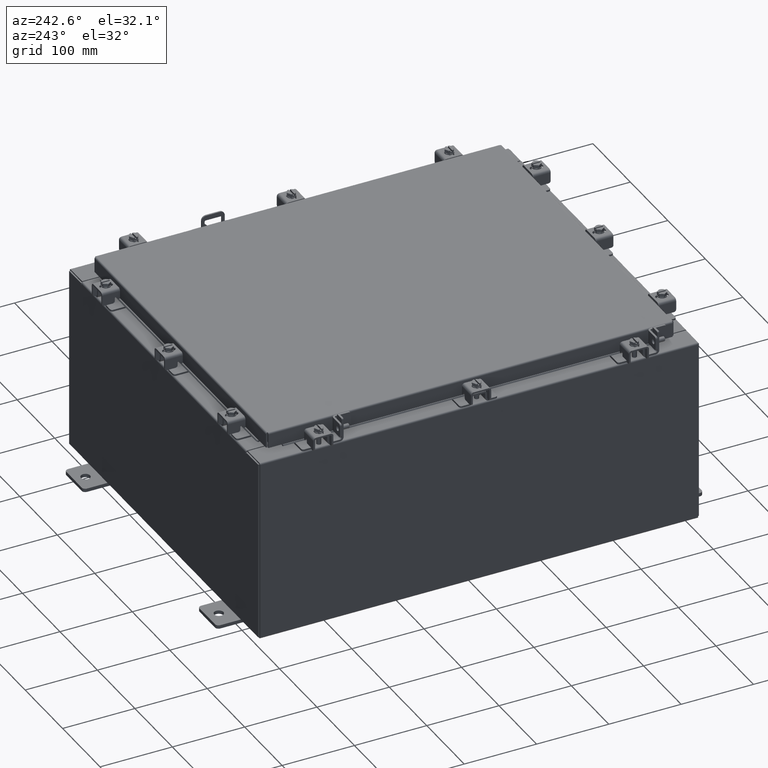
[diagram: clean part render]
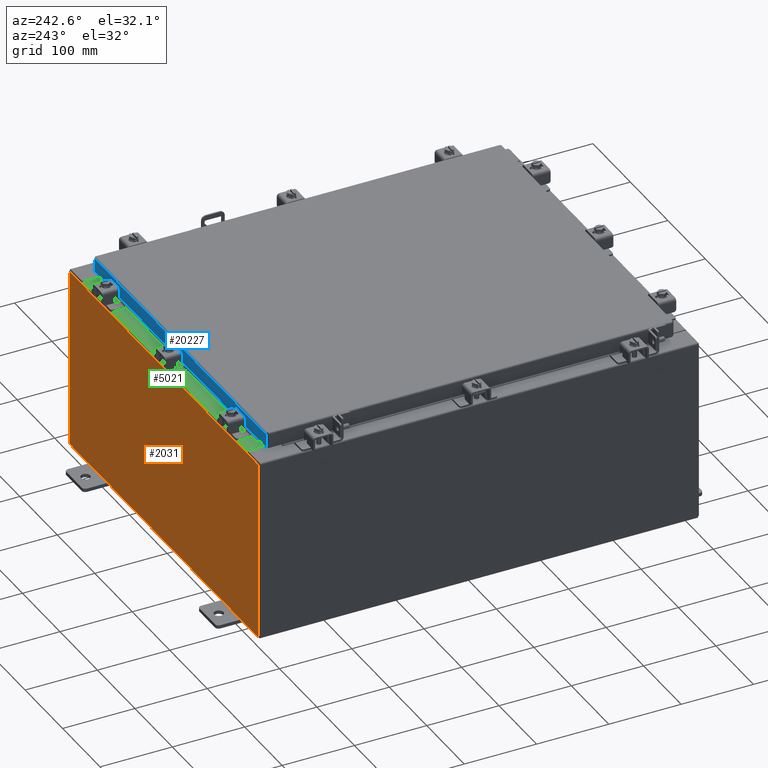
[diagram: same view with three faces highlighted in distinct colors, each labeled with its STEP entity id]
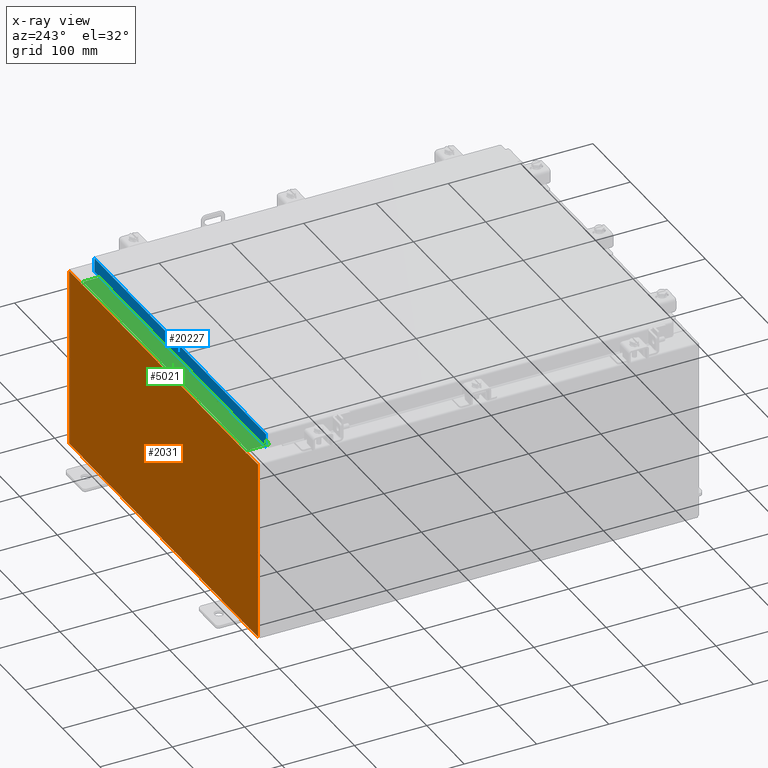
[diagram: x-ray of the same camera — body ghosted, the three highlighted faces saturated]
A machine part, auxiliary view with three faces highlighted in distinct colors.
The next image is the same camera in x-ray (body ghosted, the three faces saturated) — at least one of them is partly hidden behind the body in this view.
Their STEP definitions:

[orange] entity #2031 — the highlighted planar face has unit normal (0, -1, 0).
#195 = DIRECTION ( 'NONE',  ( 0.0000000000000000000, 0.0000000000000000000, -1.000000000000000000 ) ) ;
#255 = VERTEX_POINT ( 'NONE', #21819 ) ;
#337 = CARTESIAN_POINT ( 'NONE',  ( -8.637200000000000000, -7.171100983368691200E-016, 4.912300000000000100 ) ) ;
#652 = CIRCLE ( 'NONE', #16211, 0.01867500000000003900 ) ;
#672 = LINE ( 'NONE', #8840, #14103 ) ;
#833 = AXIS2_PLACEMENT_3D ( 'NONE', #1158, #1405, #4768 ) ;
#855 = VECTOR ( 'NONE', #4995, 39.37007874015748100 ) ;
#929 = VECTOR ( 'NONE', #21810, 39.37007874015748100 ) ;
#1115 = DIRECTION ( 'NONE',  ( 1.000000000000000000, 0.0000000000000000000, 0.0000000000000000000 ) ) ;
#1158 = CARTESIAN_POINT ( 'NONE',  ( 0.0000000000000000000, 0.0000000000000000000, 0.0000000000000000000 ) ) ;
#1405 = DIRECTION ( 'NONE',  ( 0.0000000000000000000, -1.000000000000000000, 0.0000000000000000000 ) ) ;
#1903 = CARTESIAN_POINT ( 'NONE',  ( -9.925300000000000000, 0.0000000000000000000, 4.925300000000000000 ) ) ;
#2031 = ADVANCED_FACE ( 'NONE', ( #2200 ), #18357, .F. ) ;
#2142 = ORIENTED_EDGE ( 'NONE', *, *, #19195, .F. ) ;
#2200 = FACE_OUTER_BOUND ( 'NONE', #17968, .T. ) ;
#2454 = CARTESIAN_POINT ( 'NONE',  ( -9.925300000000000000, 0.0000000000000000000, -4.925300000000000000 ) ) ;
#2979 = AXIS2_PLACEMENT_3D ( 'NONE', #15966, #5539, #17718 ) ;
#3087 = CIRCLE ( 'NONE', #2979, 0.01867500000000003900 ) ;
#3336 = VERTEX_POINT ( 'NONE', #10204 ) ;
#3346 = VECTOR ( 'NONE', #195, 39.37007874015748100 ) ;
#4684 = ORIENTED_EDGE ( 'NONE', *, *, #21936, .F. ) ;
#4727 = CARTESIAN_POINT ( 'NONE',  ( 8.674550000000001800, 0.0000000000000000000, 4.925300000000000000 ) ) ;
#4768 = DIRECTION ( 'NONE',  ( 0.0000000000000000000, -0.0000000000000000000, -1.000000000000000000 ) ) ;
#4830 = CARTESIAN_POINT ( 'NONE',  ( 8.674550000000000000, 0.0000000000000000000, 4.874950000000000100 ) ) ;
#4995 = DIRECTION ( 'NONE',  ( 0.0000000000000000000, 0.0000000000000000000, 1.000000000000000000 ) ) ;
#5331 = DIRECTION ( 'NONE',  ( -0.0000000000000000000, 1.000000000000000000, -0.0000000000000000000 ) ) ;
#5354 = DIRECTION ( 'NONE',  ( 1.000000000000000000, 0.0000000000000000000, 0.0000000000000000000 ) ) ;
#5539 = DIRECTION ( 'NONE',  ( -0.0000000000000000000, 1.000000000000000000, -0.0000000000000000000 ) ) ;
#5606 = ORIENTED_EDGE ( 'NONE', *, *, #20679, .T. ) ;
#5780 = VERTEX_POINT ( 'NONE', #11383 ) ;
#5956 = VERTEX_POINT ( 'NONE', #4830 ) ;
#6228 = CARTESIAN_POINT ( 'NONE',  ( -8.637199999999996400, -0.0000000000000000000, 0.0000000000000000000 ) ) ;
#6545 = CARTESIAN_POINT ( 'NONE',  ( -8.674549999999996400, 0.0000000000000000000, 4.925300000000000000 ) ) ;
#6724 = ORIENTED_EDGE ( 'NONE', *, *, #20596, .F. ) ;
#7342 = ORIENTED_EDGE ( 'NONE', *, *, #12234, .T. ) ;
#7443 = CARTESIAN_POINT ( 'NONE',  ( 8.637200000000000000, 0.0000000000000000000, 4.874950000000000100 ) ) ;
#7567 = VERTEX_POINT ( 'NONE', #12617 ) ;
#7716 = CARTESIAN_POINT ( 'NONE',  ( -9.925300000000000000, 0.0000000000000000000, -4.925300000000000000 ) ) ;
#7892 = DIRECTION ( 'NONE',  ( -6.510859170600007400E-014, 0.0000000000000000000, -1.000000000000000000 ) ) ;
#8472 = ORIENTED_EDGE ( 'NONE', *, *, #19502, .F. ) ;
#8498 = VECTOR ( 'NONE', #1115, 39.37007874015748100 ) ;
#8840 = CARTESIAN_POINT ( 'NONE',  ( -9.925300000000000000, 0.0000000000000000000, 4.925300000000000000 ) ) ;
#8928 = CARTESIAN_POINT ( 'NONE',  ( 9.925300000000000000, 0.0000000000000000000, 4.925300000000000000 ) ) ;
#8993 = VECTOR ( 'NONE', #7892, 39.37007874015748100 ) ;
#8997 = VECTOR ( 'NONE', #15931, 39.37007874015748100 ) ;
#9696 = VERTEX_POINT ( 'NONE', #13700 ) ;
#9949 = VECTOR ( 'NONE', #21051, 39.37007874015748100 ) ;
#10204 = CARTESIAN_POINT ( 'NONE',  ( 8.637200000000000000, 0.0000000000000000000, 4.912300000000000100 ) ) ;
#10208 = LINE ( 'NONE', #15422, #855 ) ;
#10279 = LINE ( 'NONE', #6228, #929 ) ;
#10337 = EDGE_CURVE ( 'NONE', #19257, #255, #13680, .T. ) ;
#10507 = LINE ( 'NONE', #19274, #9949 ) ;
#10643 = EDGE_CURVE ( 'NONE', #255, #12004, #22350, .T. ) ;
#11110 = CARTESIAN_POINT ( 'NONE',  ( -8.637199999999996400, -0.0000000000000000000, 4.874950000000000100 ) ) ;
#11383 = CARTESIAN_POINT ( 'NONE',  ( -8.674549999999996400, 0.0000000000000000000, 4.874950000000000100 ) ) ;
#12004 = VERTEX_POINT ( 'NONE', #13667 ) ;
#12234 = EDGE_CURVE ( 'NONE', #16397, #7567, #22292, .T. ) ;
#12528 = VERTEX_POINT ( 'NONE', #6545 ) ;
#12593 = DIRECTION ( 'NONE',  ( 1.000000000000000000, 0.0000000000000000000, 0.0000000000000000000 ) ) ;
#12617 = CARTESIAN_POINT ( 'NONE',  ( -9.925300000000000000, 0.0000000000000000000, 4.925300000000000000 ) ) ;
#12924 = DIRECTION ( 'NONE',  ( -1.000000000000000000, -0.0000000000000000000, -0.0000000000000000000 ) ) ;
#12934 = VECTOR ( 'NONE', #12593, 39.37007874015748100 ) ;
#12998 = VERTEX_POINT ( 'NONE', #11110 ) ;
#13667 = CARTESIAN_POINT ( 'NONE',  ( 9.925300000000000000, 0.0000000000000000000, -4.925300000000000000 ) ) ;
#13680 = LINE ( 'NONE', #20358, #8498 ) ;
#13700 = CARTESIAN_POINT ( 'NONE',  ( -8.637199999999996400, -7.171100983368691200E-016, 4.912300000000000100 ) ) ;
#14103 = VECTOR ( 'NONE', #5354, 39.37007874015748100 ) ;
#14139 = VERTEX_POINT ( 'NONE', #7443 ) ;
#14281 = VECTOR ( 'NONE', #12924, 39.37007874015748100 ) ;
#14613 = ORIENTED_EDGE ( 'NONE', *, *, #17321, .F. ) ;
#15422 = CARTESIAN_POINT ( 'NONE',  ( -8.674549999999996400, -0.0000000000000000000, 0.0000000000000000000 ) ) ;
#15486 = ORIENTED_EDGE ( 'NONE', *, *, #18912, .T. ) ;
#15752 = CARTESIAN_POINT ( 'NONE',  ( -8.655874999999996400, 0.0000000000000000000, 4.874950000000000100 ) ) ;
#15931 = DIRECTION ( 'NONE',  ( -0.0000000000000000000, -0.0000000000000000000, 1.000000000000000000 ) ) ;
#15966 = CARTESIAN_POINT ( 'NONE',  ( 8.655875000000000000, 0.0000000000000000000, 4.874950000000000100 ) ) ;
#16211 = AXIS2_PLACEMENT_3D ( 'NONE', #15752, #5331, #17515 ) ;
#16228 = ORIENTED_EDGE ( 'NONE', *, *, #10337, .T. ) ;
#16397 = VERTEX_POINT ( 'NONE', #2454 ) ;
#16896 = ORIENTED_EDGE ( 'NONE', *, *, #22404, .F. ) ;
#17321 = EDGE_CURVE ( 'NONE', #19257, #5956, #18241, .T. ) ;
#17460 = ORIENTED_EDGE ( 'NONE', *, *, #21538, .T. ) ;
#17515 = DIRECTION ( 'NONE',  ( 0.0000000000000000000, 0.0000000000000000000, -1.000000000000000000 ) ) ;
#17718 = DIRECTION ( 'NONE',  ( 0.0000000000000000000, 0.0000000000000000000, -1.000000000000000000 ) ) ;
#17968 = EDGE_LOOP ( 'NONE', ( #16896, #8472, #2142, #5606, #6724, #4684, #14613, #16228, #20034, #17460, #7342, #15486 ) ) ;
#18241 = LINE ( 'NONE', #20086, #8993 ) ;
#18357 = PLANE ( 'NONE',  #833 ) ;
#18912 = EDGE_CURVE ( 'NONE', #7567, #12528, #672, .T. ) ;
#19195 = EDGE_CURVE ( 'NONE', #9696, #12998, #10279, .T. ) ;
#19257 = VERTEX_POINT ( 'NONE', #4727 ) ;
#19274 = CARTESIAN_POINT ( 'NONE',  ( 8.637200000000000000, 0.0000000000000000000, 0.0000000000000000000 ) ) ;
#19442 = LINE ( 'NONE', #7716, #14281 ) ;
#19502 = EDGE_CURVE ( 'NONE', #12998, #5780, #652, .T. ) ;
#20034 = ORIENTED_EDGE ( 'NONE', *, *, #10643, .T. ) ;
#20086 = CARTESIAN_POINT ( 'NONE',  ( 8.674549999999683800, -0.0000000000000000000, -5.647877341832623900E-013 ) ) ;
#20358 = CARTESIAN_POINT ( 'NONE',  ( -9.925300000000000000, 0.0000000000000000000, 4.925300000000000000 ) ) ;
#20596 = EDGE_CURVE ( 'NONE', #14139, #3336, #10507, .T. ) ;
#20679 = EDGE_CURVE ( 'NONE', #9696, #3336, #22151, .T. ) ;
#21051 = DIRECTION ( 'NONE',  ( 0.0000000000000000000, 0.0000000000000000000, 1.000000000000000000 ) ) ;
#21538 = EDGE_CURVE ( 'NONE', #12004, #16397, #19442, .T. ) ;
#21810 = DIRECTION ( 'NONE',  ( 0.0000000000000000000, 0.0000000000000000000, -1.000000000000000000 ) ) ;
#21819 = CARTESIAN_POINT ( 'NONE',  ( 9.925300000000000000, 0.0000000000000000000, 4.925300000000000000 ) ) ;
#21936 = EDGE_CURVE ( 'NONE', #5956, #14139, #3087, .T. ) ;
#22151 = LINE ( 'NONE', #337, #12934 ) ;
#22292 = LINE ( 'NONE', #1903, #8997 ) ;
#22350 = LINE ( 'NONE', #8928, #3346 ) ;
#22404 = EDGE_CURVE ( 'NONE', #5780, #12528, #10208, .T. ) ;

[blue] entity #20227 — the highlighted planar face has unit normal (0, -1, -0).
#196 = EDGE_CURVE ( 'NONE', #2135, #16040, #2823, .T. ) ;
#608 = EDGE_CURVE ( 'NONE', #1782, #3006, #5008, .T. ) ;
#882 = DIRECTION ( 'NONE',  ( -1.000000000000000000, -6.774360455589248400E-031, 1.201604571657912200E-016 ) ) ;
#1303 = DIRECTION ( 'NONE',  ( 1.000000000000000000, -4.379057701015053300E-047, 1.201604571657912200E-016 ) ) ;
#1758 = PLANE ( 'NONE',  #9099 ) ;
#1782 = VERTEX_POINT ( 'NONE', #5450 ) ;
#2092 = CARTESIAN_POINT ( 'NONE',  ( -9.094000000000001200, 11.09400000000000300, -0.8500000000000020900 ) ) ;
#2135 = VERTEX_POINT ( 'NONE', #9210 ) ;
#2275 = VERTEX_POINT ( 'NONE', #2953 ) ;
#2823 = LINE ( 'NONE', #6241, #20262 ) ;
#2953 = CARTESIAN_POINT ( 'NONE',  ( 9.005157864376267100, 11.09400000000000300, -0.8499999999999999800 ) ) ;
#3006 = VERTEX_POINT ( 'NONE', #13017 ) ;
#3240 = LINE ( 'NONE', #21780, #11976 ) ;
#3550 = DIRECTION ( 'NONE',  ( 0.0000000000000000000, 2.818880942772352600E-015, -1.000000000000000000 ) ) ;
#4260 = VERTEX_POINT ( 'NONE', #15615 ) ;
#5008 = LINE ( 'NONE', #10052, #5547 ) ;
#5450 = CARTESIAN_POINT ( 'NONE',  ( -9.005157864376268900, 11.09400000000000100, -0.08770000000000026400 ) ) ;
#5547 = VECTOR ( 'NONE', #20486, 39.37007874015748100 ) ;
#5887 = CARTESIAN_POINT ( 'NONE',  ( 9.005157864376267100, 11.09400000000000100, 3.059669752903974500E-014 ) ) ;
#6042 = VECTOR ( 'NONE', #1303, 39.37007874015748100 ) ;
#6221 = VECTOR ( 'NONE', #10816, 39.37007874015748100 ) ;
#6241 = CARTESIAN_POINT ( 'NONE',  ( -8.255157864376267100, 11.09399999999999900, -0.8500000000000065300 ) ) ;
#6768 = LINE ( 'NONE', #2092, #6221 ) ;
#6827 = ORIENTED_EDGE ( 'NONE', *, *, #17976, .F. ) ;
#6886 = CARTESIAN_POINT ( 'NONE',  ( 8.255157864376263500, 11.09399999999999900, -0.8500000000000065300 ) ) ;
#7272 = ORIENTED_EDGE ( 'NONE', *, *, #196, .F. ) ;
#8929 = ORIENTED_EDGE ( 'NONE', *, *, #12894, .F. ) ;
#9099 = AXIS2_PLACEMENT_3D ( 'NONE', #15655, #13991, #3550 ) ;
#9210 = CARTESIAN_POINT ( 'NONE',  ( -8.255157864376267100, 11.09399999999999900, -0.8500000000000065300 ) ) ;
#9635 = EDGE_CURVE ( 'NONE', #16040, #2275, #19938, .T. ) ;
#10052 = CARTESIAN_POINT ( 'NONE',  ( -9.005157864376268900, 11.09400000000000100, -0.07470000000000015500 ) ) ;
#10816 = DIRECTION ( 'NONE',  ( 1.000000000000000000, -4.379057701015053300E-047, 1.201604571657912200E-016 ) ) ;
#11559 = EDGE_LOOP ( 'NONE', ( #6827, #21726, #15630, #7272, #8929, #13675 ) ) ;
#11976 = VECTOR ( 'NONE', #882, 39.37007874015748100 ) ;
#12894 = EDGE_CURVE ( 'NONE', #3006, #2135, #6768, .T. ) ;
#13017 = CARTESIAN_POINT ( 'NONE',  ( -9.005157864376268900, 11.09400000000000300, -0.8500000000000020900 ) ) ;
#13539 = CARTESIAN_POINT ( 'NONE',  ( -9.094000000000001200, 11.09400000000000300, -0.8500000000000020900 ) ) ;
#13609 = VECTOR ( 'NONE', #19831, 39.37007874015748100 ) ;
#13675 = ORIENTED_EDGE ( 'NONE', *, *, #608, .F. ) ;
#13991 = DIRECTION ( 'NONE',  ( 3.387180227794624200E-031, -1.000000000000000000, -2.818880942772352600E-015 ) ) ;
#14335 = DIRECTION ( 'NONE',  ( 1.000000000000000000, -0.0000000000000000000, -0.0000000000000000000 ) ) ;
#15615 = CARTESIAN_POINT ( 'NONE',  ( 9.005157864376267100, 11.09400000000000100, -0.08770000000000245700 ) ) ;
#15630 = ORIENTED_EDGE ( 'NONE', *, *, #9635, .F. ) ;
#15655 = CARTESIAN_POINT ( 'NONE',  ( 0.0000000000000000000, 11.09400000000000100, 3.059669752903974500E-014 ) ) ;
#16040 = VERTEX_POINT ( 'NONE', #6886 ) ;
#17854 = EDGE_CURVE ( 'NONE', #4260, #2275, #18756, .T. ) ;
#17976 = EDGE_CURVE ( 'NONE', #4260, #1782, #3240, .T. ) ;
#18756 = LINE ( 'NONE', #5887, #13609 ) ;
#19831 = DIRECTION ( 'NONE',  ( 0.0000000000000000000, 2.818880942772352600E-015, -1.000000000000000000 ) ) ;
#19938 = LINE ( 'NONE', #13539, #6042 ) ;
#20227 = ADVANCED_FACE ( 'NONE', ( #21131 ), #1758, .F. ) ;
#20262 = VECTOR ( 'NONE', #14335, 39.37007874015748100 ) ;
#20486 = DIRECTION ( 'NONE',  ( -0.0000000000000000000, 2.818880942772352600E-015, -1.000000000000000000 ) ) ;
#21131 = FACE_OUTER_BOUND ( 'NONE', #11559, .T. ) ;
#21726 = ORIENTED_EDGE ( 'NONE', *, *, #17854, .T. ) ;
#21780 = CARTESIAN_POINT ( 'NONE',  ( -9.094000000000001200, 11.09400000000000100, -0.08770000000000026400 ) ) ;

[green] entity #5021 — the highlighted planar face has unit normal (0, 0, 1).
#13 = VERTEX_POINT ( 'NONE', #3595 ) ;
#590 = CARTESIAN_POINT ( 'NONE',  ( -8.637200000000000000, -0.07469999999999973900, 5.000000000000000000 ) ) ;
#661 = DIRECTION ( 'NONE',  ( -0.0000000000000000000, 1.000000000000000000, -3.566381192773190000E-015 ) ) ;
#1173 = AXIS2_PLACEMENT_3D ( 'NONE', #3365, #3253, #3222 ) ;
#1511 = EDGE_CURVE ( 'NONE', #13, #10295, #21336, .T. ) ;
#1820 = EDGE_CURVE ( 'NONE', #2914, #10295, #12889, .T. ) ;
#2914 = VERTEX_POINT ( 'NONE', #9810 ) ;
#3222 = DIRECTION ( 'NONE',  ( 0.0000000000000000000, -1.000000000000000000, 3.566381192773190000E-015 ) ) ;
#3253 = DIRECTION ( 'NONE',  ( 0.0000000000000000000, 3.566381192773190000E-015, 1.000000000000000000 ) ) ;
#3280 = PLANE ( 'NONE',  #1173 ) ;
#3353 = DIRECTION ( 'NONE',  ( -1.000000000000000000, -6.325772226333218300E-017, 2.256011509776178200E-031 ) ) ;
#3365 = CARTESIAN_POINT ( 'NONE',  ( 0.0000000000000000000, 1.782631094477737600E-014, 5.000000000000000000 ) ) ;
#3419 = CARTESIAN_POINT ( 'NONE',  ( 5.547702242495411600E-018, -0.08770000000000081900, 5.000000000000000000 ) ) ;
#3595 = CARTESIAN_POINT ( 'NONE',  ( 8.637200000000000000, -0.08770000000000047200, 5.000000000000000000 ) ) ;
#3636 = VECTOR ( 'NONE', #661, 39.37007874015748100 ) ;
#4035 = FACE_OUTER_BOUND ( 'NONE', #15199, .T. ) ;
#5021 = ADVANCED_FACE ( 'NONE', ( #4035 ), #3280, .T. ) ;
#5250 = VERTEX_POINT ( 'NONE', #20146 ) ;
#5832 = VECTOR ( 'NONE', #20769, 39.37007874015748100 ) ;
#6510 = EDGE_CURVE ( 'NONE', #5250, #2914, #8346, .T. ) ;
#7967 = VECTOR ( 'NONE', #3353, 39.37007874015748100 ) ;
#8085 = CARTESIAN_POINT ( 'NONE',  ( -8.637200000000000000, -0.08770000000000081900, 5.000000000000000000 ) ) ;
#8346 = LINE ( 'NONE', #14844, #11903 ) ;
#8368 = ORIENTED_EDGE ( 'NONE', *, *, #1820, .F. ) ;
#8581 = CARTESIAN_POINT ( 'NONE',  ( 8.637200000000000000, -1.300299999999999800, 5.000000000000004400 ) ) ;
#9667 = DIRECTION ( 'NONE',  ( -1.000000000000000000, 0.0000000000000000000, 0.0000000000000000000 ) ) ;
#9810 = CARTESIAN_POINT ( 'NONE',  ( -8.637200000000000000, -1.287299999999999200, 5.000000000000004400 ) ) ;
#10295 = VERTEX_POINT ( 'NONE', #8085 ) ;
#10495 = LINE ( 'NONE', #8581, #5832 ) ;
#11903 = VECTOR ( 'NONE', #9667, 39.37007874015748100 ) ;
#12839 = ORIENTED_EDGE ( 'NONE', *, *, #1511, .T. ) ;
#12889 = LINE ( 'NONE', #590, #3636 ) ;
#14844 = CARTESIAN_POINT ( 'NONE',  ( 8.637200000000000000, -1.287299999999999900, 5.000000000000003600 ) ) ;
#15199 = EDGE_LOOP ( 'NONE', ( #8368, #21803, #21265, #12839 ) ) ;
#15989 = EDGE_CURVE ( 'NONE', #13, #5250, #10495, .T. ) ;
#20146 = CARTESIAN_POINT ( 'NONE',  ( 8.637200000000000000, -1.287299999999999900, 5.000000000000004400 ) ) ;
#20769 = DIRECTION ( 'NONE',  ( -0.0000000000000000000, -1.000000000000000000, 3.566381192773190000E-015 ) ) ;
#21265 = ORIENTED_EDGE ( 'NONE', *, *, #15989, .F. ) ;
#21336 = LINE ( 'NONE', #3419, #7967 ) ;
#21803 = ORIENTED_EDGE ( 'NONE', *, *, #6510, .F. ) ;